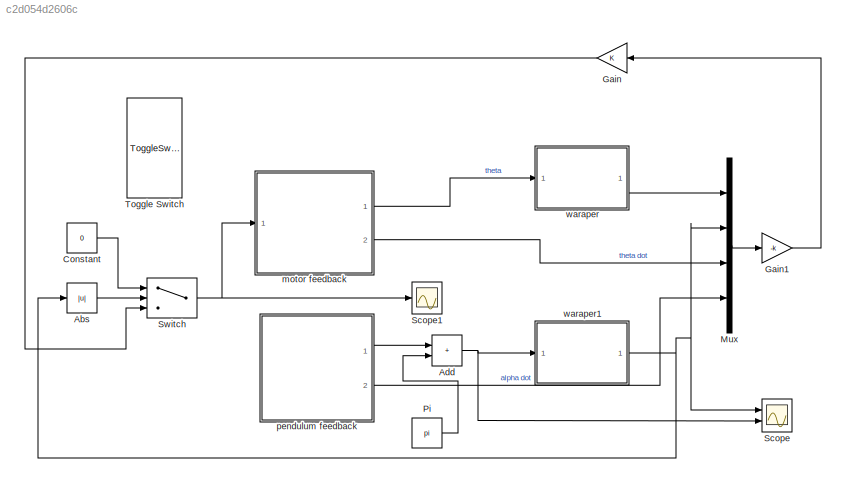
MODEL slx_c2d054d2606c
KIND model
CONFIG AbsTol = auto
CONFIG EnableMultiTasking = on
CONFIG FixedStep = auto
CONFIG MaxStep = auto
CONFIG MinStep = auto
CONFIG RelTol = 1e-3
CONFIG SampleTimeConstraint = Unconstrained
CONFIG Solver = FixedStepAuto
CONFIG SolverName = FixedStepAuto
CONFIG StartTime = 0.0
CONFIG StopTime = inf
BLOCK [Abs] Abs
  SaturateOnIntegerOverflow = off
BLOCK [Sum] Add
  IconShape = rectangular
  Ports = [2, 1]
BLOCK [Constant] Constant
  Value = 0
BLOCK [Gain] Gain
  NameLocation = top
BLOCK [Gain] Gain1
  Gain = -k
  Multiplication = Matrix(K*u)
BLOCK [Mux] Mux
  DisplayOption = bar
  Ports = [4, 1]
BLOCK [Constant] Pi
  OutDataTypeStr = Inherit: Inherit via back propagation
  Value = pi
BLOCK [Scope] Scope
  Floating = off
  NumInputPorts = 2
  Ports = [2]
  ScopeSpecificationString = Simulink.scopes.TimeScopeBlockCfg('CurrentConfiguration', extmgr.ConfigurationSet(extmgr.Configuration('Core','General UI',true),extmgr.Configuration('Core','Source UI',true),extmgr.Configuration('Sources','WiredSimulink',true),extmgr.Configuration('Visuals','Time Domain',true,'SerializedDisplays',{struct('MinYLimReal','-3.92765','MaxYLimReal','3.93288','YLabelReal','','MinYLimMag','0.00000','MaxY...<+1334ch>
BLOCK [Scope] Scope1
  Floating = off
  NumInputPorts = 1
  Ports = [1]
  ScopeSpecificationString = Simulink.scopes.TimeScopeBlockCfg('CurrentConfiguration', extmgr.ConfigurationSet(extmgr.Configuration('Core','General UI',true),extmgr.Configuration('Core','Source UI',true),extmgr.Configuration('Sources','WiredSimulink',true,'DataLoggingVariableName','ScopeData2'),extmgr.Configuration('Visuals','Time Domain',true,'SerializedDisplays',{struct('MinYLimReal','-1863.73825','MaxYLimReal','2070.25314'...<+1381ch>
BLOCK [Switch] Switch
  Criteria = u2 > Threshold
  InputSameDT = off
  SaturateOnIntegerOverflow = off
  Threshold = pi/7
BLOCK [ToggleSwitchBlock] Toggle Switch
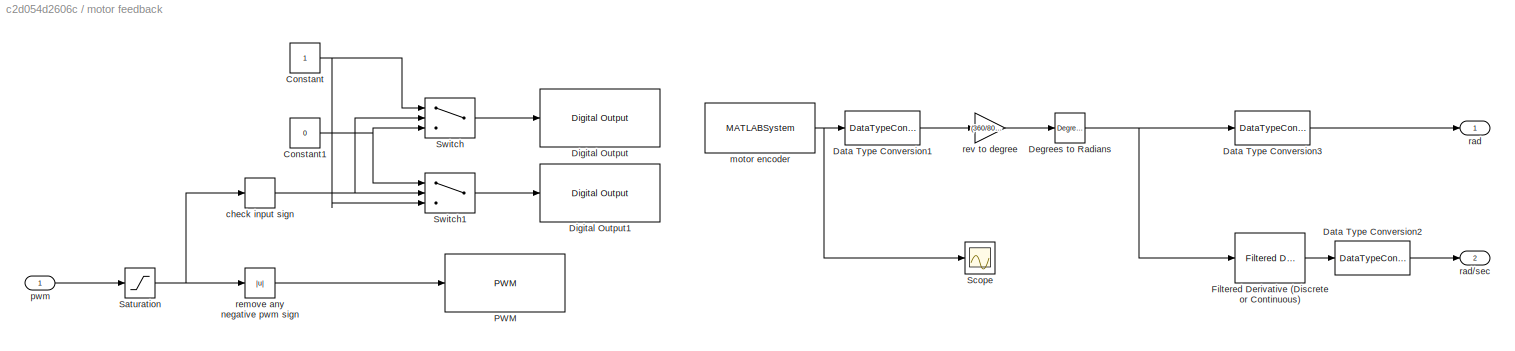
BLOCK [SubSystem] motor feedback
  Ports = [1, 2]
  RequestExecContextInheritance = off
BLOCK [Constant] motor feedback/Constant
BLOCK [Constant] motor feedback/Constant1
  Value = 0
BLOCK [DataTypeConversion] motor feedback/Data Type Conversion1
  OutDataTypeStr = double
  RndMeth = Floor
  SaturateOnIntegerOverflow = off
BLOCK [DataTypeConversion] motor feedback/Data Type Conversion2
  RndMeth = Floor
  SaturateOnIntegerOverflow = off
BLOCK [DataTypeConversion] motor feedback/Data Type Conversion3
  RndMeth = Floor
  SaturateOnIntegerOverflow = off
BLOCK [Reference] motor feedback/Degrees to Radians  REF=simulink_extras/Transformations/Degrees to
Radians
  Ports = [1, 1]
  SourceBlock = simulink_extras/Transformations/Degrees to\nRadians
  SourceProductBaseCode = SL
  SourceType = DegreesToRadians
BLOCK [Reference] motor feedback/Digital Output  REF=arduinolib/Digital Output
  Ports = [1]
  SourceBlock = arduinolib/Digital Output
  SourceProductBaseCode = ARDUINO
  SourceType = Arduino Digital Output
BLOCK [Reference] motor feedback/Digital Output1  REF=arduinolib/Digital Output
  Ports = [1]
  SourceBlock = arduinolib/Digital Output
  SourceProductBaseCode = ARDUINO
  SourceType = Arduino Digital Output
BLOCK [Reference] motor feedback/Filtered Derivative (Discrete or Continuous)  REF=eeGeneralControl/Filtered Derivative
(Discrete or Continuous)
  Ports = [1, 1]
  SourceBlock = eeGeneralControl/Filtered Derivative\n(Discrete or Continuous)
  SourceProductBaseCode = PS
  SourceType = Filtered Derivative (Discrete or Continuous)
BLOCK [Reference] motor feedback/PWM  REF=arduinolib/PWM
  Ports = [1]
  SourceBlock = arduinolib/PWM
  SourceProductBaseCode = ARDUINO
  SourceType = Arduino PWM
BLOCK [Saturate] motor feedback/Saturation
  LowerLimit = -255
  UpperLimit = 255
BLOCK [Scope] motor feedback/Scope
  Floating = off
  NumInputPorts = 1
  Ports = [1]
  ScopeSpecificationString = Simulink.scopes.TimeScopeBlockCfg('CurrentConfiguration', extmgr.ConfigurationSet(extmgr.Configuration('Core','General UI',true),extmgr.Configuration('Core','Source UI',true),extmgr.Configuration('Sources','WiredSimulink',true,'DataLoggingVariableName','ScopeData1'),extmgr.Configuration('Visuals','Time Domain',true,'SerializedDisplays',{struct('MinYLimReal','-158.875','MaxYLimReal','69.875','YLabe...<+1372ch>
BLOCK [Switch] motor feedback/Switch
  InputSameDT = off
  SaturateOnIntegerOverflow = off
BLOCK [Switch] motor feedback/Switch1
  InputSameDT = off
  SaturateOnIntegerOverflow = off
BLOCK [Signum] motor feedback/check input sign
BLOCK [MATLABSystem] motor feedback/motor encoder
  Encoder = 1
  MaskDisplay = disp('Encoder');\nport_label('output',1,'y');
  MaskType = Encoder_arduino
  PinA = 3
  PinB = 5
  Ports = [0, 1]
  SampleTime = 0.001
  System = Encoder_arduino
BLOCK [Inport] motor feedback/pwm
BLOCK [Outport] motor feedback/rad
BLOCK [Outport] motor feedback/rad//sec
  Port = 2
BLOCK [Abs] motor feedback/remove any negative pwm sign
  SaturateOnIntegerOverflow = off
BLOCK [Gain] motor feedback/rev to degree
  Gain = (360/800)
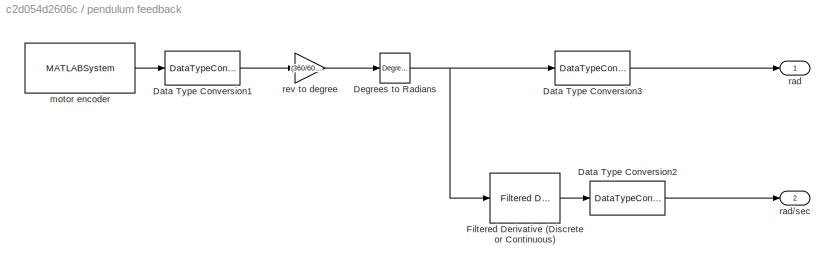
BLOCK [SubSystem] pendulum feedback
  Ports = [0, 2]
  RequestExecContextInheritance = off
BLOCK [DataTypeConversion] pendulum feedback/Data Type Conversion1
  OutDataTypeStr = double
  RndMeth = Floor
  SaturateOnIntegerOverflow = off
BLOCK [DataTypeConversion] pendulum feedback/Data Type Conversion2
  RndMeth = Floor
  SaturateOnIntegerOverflow = off
BLOCK [DataTypeConversion] pendulum feedback/Data Type Conversion3
  RndMeth = Floor
  SaturateOnIntegerOverflow = off
BLOCK [Reference] pendulum feedback/Degrees to Radians  REF=simulink_extras/Transformations/Degrees to
Radians
  Ports = [1, 1]
  SourceBlock = simulink_extras/Transformations/Degrees to\nRadians
  SourceProductBaseCode = SL
  SourceType = DegreesToRadians
BLOCK [Reference] pendulum feedback/Filtered Derivative (Discrete or Continuous)  REF=eeGeneralControl/Filtered Derivative
(Discrete or Continuous)
  Ports = [1, 1]
  SourceBlock = eeGeneralControl/Filtered Derivative\n(Discrete or Continuous)
  SourceProductBaseCode = PS
  SourceType = Filtered Derivative (Discrete or Continuous)
BLOCK [MATLABSystem] pendulum feedback/motor encoder
  Encoder = 0
  MaskDisplay = disp('Encoder');\nport_label('output',1,'y');
  MaskType = Encoder_arduino
  PinA = 2
  PinB = 4
  Ports = [0, 1]
  SampleTime = 0.001
  System = Encoder_arduino
BLOCK [Outport] pendulum feedback/rad
BLOCK [Outport] pendulum feedback/rad//sec
  Port = 2
BLOCK [Gain] pendulum feedback/rev to degree
  Gain = (360/600)/2
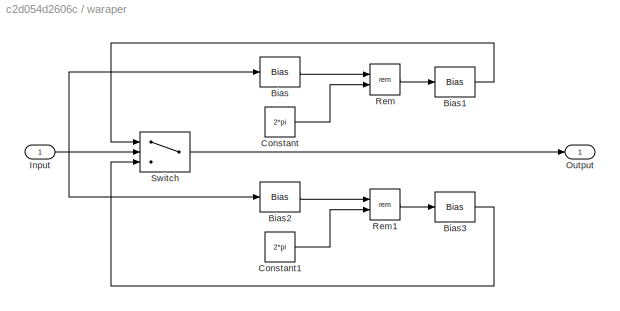
BLOCK [SubSystem] waraper
  Ports = [1, 1]
  RequestExecContextInheritance = off
BLOCK [Bias] waraper/Bias
  Bias = pi
  SaturateOnIntegerOverflow = off
BLOCK [Bias] waraper/Bias1
  Bias = -pi
  SaturateOnIntegerOverflow = off
BLOCK [Bias] waraper/Bias2
  Bias = -pi
  SaturateOnIntegerOverflow = off
BLOCK [Bias] waraper/Bias3
  Bias = +pi
  SaturateOnIntegerOverflow = off
BLOCK [Constant] waraper/Constant
  Value = 2*pi
BLOCK [Constant] waraper/Constant1
  Value = 2*pi
BLOCK [Inport] waraper/Input
BLOCK [Outport] waraper/Output
BLOCK [Math] waraper/Rem
  Operator = rem
  Ports = [2, 1]
BLOCK [Math] waraper/Rem1
  Operator = rem
  Ports = [2, 1]
BLOCK [Switch] waraper/Switch
  Criteria = u2 > Threshold
  InputSameDT = off
  SaturateOnIntegerOverflow = off
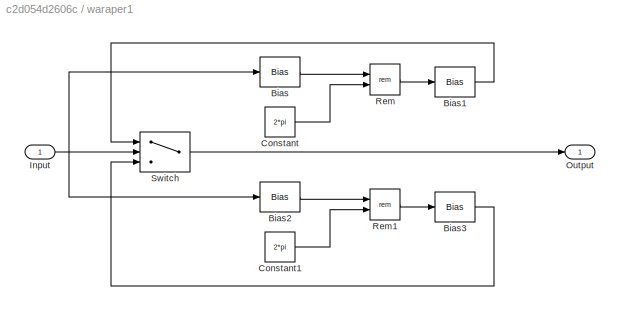
BLOCK [SubSystem] waraper1
  Ports = [1, 1]
  RequestExecContextInheritance = off
BLOCK [Bias] waraper1/Bias
  Bias = pi
  SaturateOnIntegerOverflow = off
BLOCK [Bias] waraper1/Bias1
  Bias = -pi
  SaturateOnIntegerOverflow = off
BLOCK [Bias] waraper1/Bias2
  Bias = -pi
  SaturateOnIntegerOverflow = off
BLOCK [Bias] waraper1/Bias3
  Bias = +pi
  SaturateOnIntegerOverflow = off
BLOCK [Constant] waraper1/Constant
  Value = 2*pi
BLOCK [Constant] waraper1/Constant1
  Value = 2*pi
BLOCK [Inport] waraper1/Input
BLOCK [Outport] waraper1/Output
BLOCK [Math] waraper1/Rem
  Operator = rem
  Ports = [2, 1]
BLOCK [Math] waraper1/Rem1
  Operator = rem
  Ports = [2, 1]
BLOCK [Switch] waraper1/Switch
  InputSameDT = off
  SaturateOnIntegerOverflow = off
LINE Abs:1 -> Switch:2
NET Add:1 -> Scope:2, waraper1:1
LINE Constant:1 -> Switch:1
LINE Gain1:1 -> Gain:1
LINE Gain:1 -> Switch:3
LINE Mux:1 -> Gain1:1
LINE Pi:1 -> Add:2
NET Switch:1 -> Scope1:1, motor feedback:1
NET motor feedback/Constant1:1 -> motor feedback/Switch1:1, motor feedback/Switch:3
NET motor feedback/Constant:1 -> motor feedback/Switch1:3, motor feedback/Switch:1
LINE motor feedback/Data Type Conversion1:1 -> motor feedback/rev to degree:1
LINE motor feedback/Data Type Conversion2:1 -> motor feedback/rad//sec:1
LINE motor feedback/Data Type Conversion3:1 -> motor feedback/rad:1
NET motor feedback/Degrees to Radians:1 -> motor feedback/Data Type Conversion3:1, motor feedback/Filtered Derivative (Discrete or Continuous):1
LINE motor feedback/Filtered Derivative (Discrete or Continuous):1 -> motor feedback/Data Type Conversion2:1
NET motor feedback/Saturation:1 -> motor feedback/check input sign:1, motor feedback/remove any negative pwm sign:1
LINE motor feedback/Switch1:1 -> motor feedback/Digital Output1:1
LINE motor feedback/Switch:1 -> motor feedback/Digital Output:1
NET motor feedback/check input sign:1 -> motor feedback/Switch1:2, motor feedback/Switch:2
NET motor feedback/motor encoder:1 -> motor feedback/Data Type Conversion1:1, motor feedback/Scope:1
LINE motor feedback/pwm:1 -> motor feedback/Saturation:1
LINE motor feedback/remove any negative pwm sign:1 -> motor feedback/PWM:1
LINE motor feedback/rev to degree:1 -> motor feedback/Degrees to Radians:1
LINE motor feedback:1 -> waraper:1
LINE motor feedback:2 -> Mux:3
LINE pendulum feedback/Data Type Conversion1:1 -> pendulum feedback/rev to degree:1
LINE pendulum feedback/Data Type Conversion2:1 -> pendulum feedback/rad//sec:1
LINE pendulum feedback/Data Type Conversion3:1 -> pendulum feedback/rad:1
NET pendulum feedback/Degrees to Radians:1 -> pendulum feedback/Data Type Conversion3:1, pendulum feedback/Filtered Derivative (Discrete or Continuous):1
LINE pendulum feedback/Filtered Derivative (Discrete or Continuous):1 -> pendulum feedback/Data Type Conversion2:1
LINE pendulum feedback/motor encoder:1 -> pendulum feedback/Data Type Conversion1:1
LINE pendulum feedback/rev to degree:1 -> pendulum feedback/Degrees to Radians:1
LINE pendulum feedback:1 -> Add:1
LINE pendulum feedback:2 -> Mux:4
LINE waraper/Bias1:1 -> waraper/Switch:1
LINE waraper/Bias2:1 -> waraper/Rem1:1
LINE waraper/Bias3:1 -> waraper/Switch:3
LINE waraper/Bias:1 -> waraper/Rem:1
LINE waraper/Constant1:1 -> waraper/Rem1:2
LINE waraper/Constant:1 -> waraper/Rem:2
NET waraper/Input:1 -> waraper/Bias2:1, waraper/Bias:1, waraper/Switch:2
LINE waraper/Rem1:1 -> waraper/Bias3:1
LINE waraper/Rem:1 -> waraper/Bias1:1
LINE waraper/Switch:1 -> waraper/Output:1
LINE waraper1/Bias1:1 -> waraper1/Switch:1
LINE waraper1/Bias2:1 -> waraper1/Rem1:1
LINE waraper1/Bias3:1 -> waraper1/Switch:3
LINE waraper1/Bias:1 -> waraper1/Rem:1
LINE waraper1/Constant1:1 -> waraper1/Rem1:2
LINE waraper1/Constant:1 -> waraper1/Rem:2
NET waraper1/Input:1 -> waraper1/Bias2:1, waraper1/Bias:1, waraper1/Switch:2
LINE waraper1/Rem1:1 -> waraper1/Bias3:1
LINE waraper1/Rem:1 -> waraper1/Bias1:1
LINE waraper1/Switch:1 -> waraper1/Output:1
NET waraper1:1 -> Abs:1, Mux:2, Scope:1
LINE waraper:1 -> Mux:1
note: NET lines group one-source signal fan-out (src -> all destinations, sorted); 1:1 wires keep LINE
